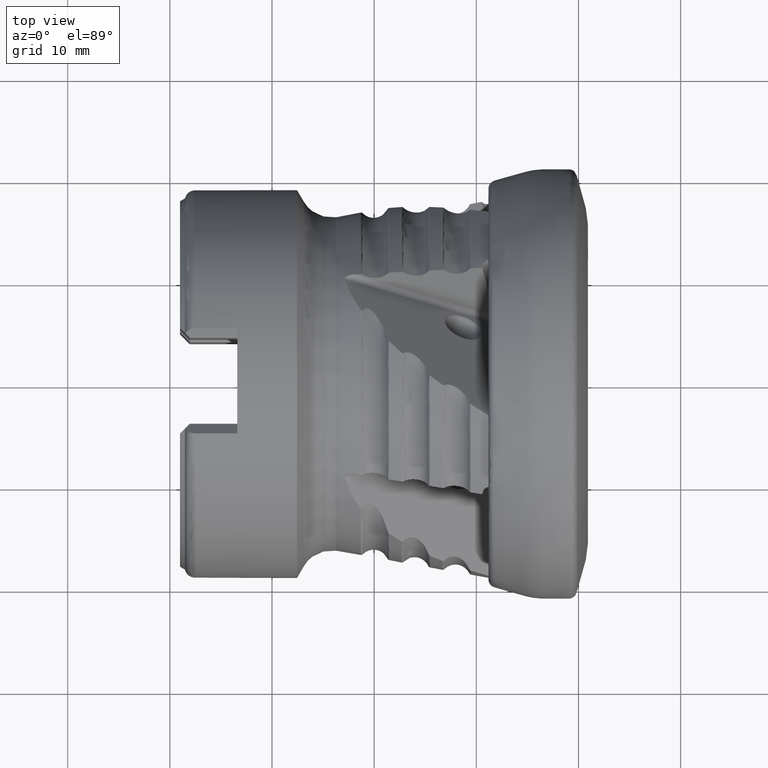
[diagram: clean part render]
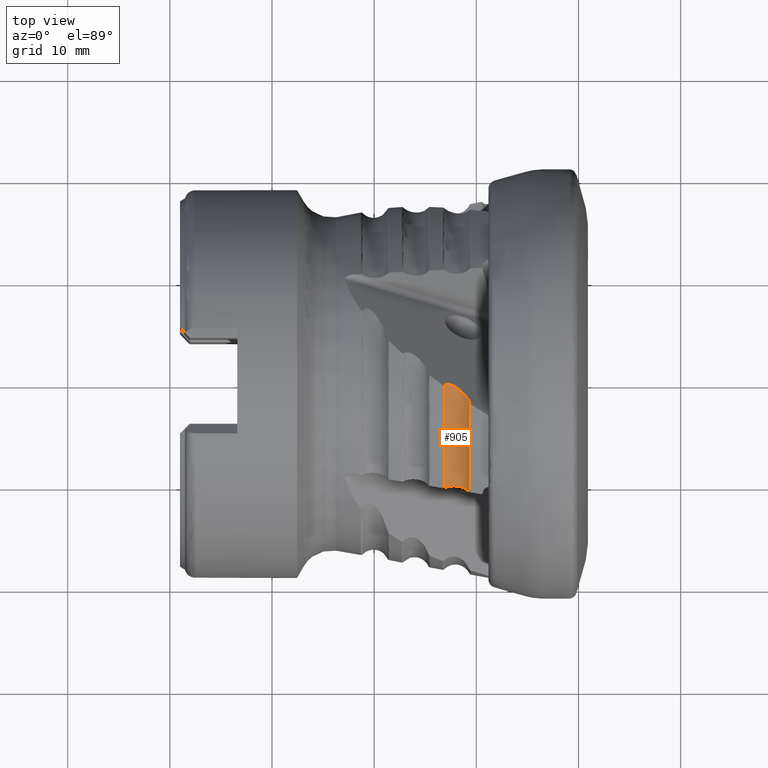
[diagram: same view with one face highlighted and labeled with its STEP entity id]
A machine part, top view. The second image highlights one B-rep face of the part: STEP entity #905.
In plain terms, the highlighted toroidal blend (fillet) surface has major radius 19.1713 mm and minor (blend) radius 1.5 mm.
Its self-contained STEP definition (entity closure, byte-faithful):
#185 = VERTEX_POINT ( 'NONE', #3849 ) ;
#223 = CARTESIAN_POINT ( 'NONE',  ( -10.68017554922010100, -2.119321010124012100, 18.43865570297902000 ) ) ;
#578 = EDGE_CURVE ( 'NONE', #185, #7853, #8871, .T. ) ;
#621 = EDGE_LOOP ( 'NONE', ( #1649, #7051, #7034, #3804 ) ) ;
#905 = ADVANCED_FACE ( 'NONE', ( #7429 ), #5562, .F. ) ;
#1362 = CARTESIAN_POINT ( 'NONE',  ( -13.13077898559616100, -0.4321376897744005900, 18.12596230919154300 ) ) ;
#1649 = ORIENTED_EDGE ( 'NONE', *, *, #7004, .T. ) ;
#1798 = CARTESIAN_POINT ( 'NONE',  ( -10.89323141793811800, -1.679352099229667500, 18.11634688501154500 ) ) ;
#1842 = VERTEX_POINT ( 'NONE', #223 ) ;
#2001 = CARTESIAN_POINT ( 'NONE',  ( -12.91318140703387800, -0.3681475559674734500, 17.93858635823398700 ) ) ;
#2016 = CARTESIAN_POINT ( 'NONE',  ( -13.02801870458214500, -0.3918814143876175300, 18.02737427003242500 ) ) ;
#2019 = CARTESIAN_POINT ( 'NONE',  ( -13.08132523932029100, -0.4093740759567023900, 18.07510507996012800 ) ) ;
#2035 = CARTESIAN_POINT ( 'NONE',  ( -13.13077898559616100, -0.4321376897744005900, 18.12596230919154300 ) ) ;
#2096 = CARTESIAN_POINT ( 'NONE',  ( -12.24693641506314600, -0.4767330181890671600, 17.67129510431081500 ) ) ;
#2102 = CARTESIAN_POINT ( 'NONE',  ( -12.52008004756391400, -0.3874022434160395200, 17.73578340937483600 ) ) ;
#2176 = CARTESIAN_POINT ( 'NONE',  ( -11.73793910005533400, -0.7739818175747417200, 17.68272507688474000 ) ) ;
#2210 = CARTESIAN_POINT ( 'NONE',  ( -12.65836220155172100, -0.3622254093605100600, 17.78860493983321000 ) ) ;
#2241 = CARTESIAN_POINT ( 'NONE',  ( -12.85071666683739800, -0.3619702474563242200, 17.89706566722633200 ) ) ;
#2273 = CARTESIAN_POINT ( 'NONE',  ( -11.22005292887726400, -1.254276132651752900, 17.87332395791970500 ) ) ;
#2302 = CARTESIAN_POINT ( 'NONE',  ( -11.41068289237418800, -1.053481530080581300, 17.77901360053393600 ) ) ;
#2305 = CARTESIAN_POINT ( 'NONE',  ( -11.51348871050810800, -0.9570176030535152400, 17.74005022205580300 ) ) ;
#2308 = CARTESIAN_POINT ( 'NONE',  ( -11.85784846045784100, -0.6889500019988100700, 17.66493227600607300 ) ) ;
#2331 = CARTESIAN_POINT ( 'NONE',  ( -12.11173638994503300, -0.5404974886250909500, 17.65904507391950100 ) ) ;
#2340 = CARTESIAN_POINT ( 'NONE',  ( -11.13168738374281700, -1.359504667691148900, 17.92926842842400600 ) ) ;
#2498 = CARTESIAN_POINT ( 'NONE',  ( -10.68017554922010100, -2.119321010124012100, 18.43865570297902000 ) ) ;
#2526 = CARTESIAN_POINT ( 'NONE',  ( -10.76853488615283000, -1.896997058277151600, 18.26487836108636700 ) ) ;
#3172 = B_SPLINE_CURVE_WITH_KNOTS ( 'NONE', 3,
 ( #2498, #2526, #1798, #2340, #2273, #2302, #2305, #2176, #2308, #2331, #2096, #2102, #2210, #2241, #2001, #2016, #2019, #2035 ),
 .UNSPECIFIED., .F., .F.,
 ( 4, 2, 2, 2, 2, 2, 2, 2, 4 ),
 ( 6.599408178958873400E-007, 0.0008750545435202624400, 0.001312251844871442100, 0.001749449146222622000, 0.002186646447573801800, 0.002623843748924981300, 0.003061041050276161300, 0.003279639700951751500, 0.003498238351627341300 ),
 .UNSPECIFIED. ) ;
#3804 = ORIENTED_EDGE ( 'NONE', *, *, #4114, .T. ) ;
#3849 = CARTESIAN_POINT ( 'NONE',  ( -13.13077898559607700, -10.43216131451598700, 14.82927047851876900 ) ) ;
#4114 = EDGE_CURVE ( 'NONE', #1842, #8273, #3172, .T. ) ;
#4219 = CARTESIAN_POINT ( 'NONE',  ( -10.68017554922010600, -10.82398617207393500, 15.07703117406426500 ) ) ;
#4840 = AXIS2_PLACEMENT_3D ( 'NONE', #9128, #9125, #9104 ) ;
#5330 = DIRECTION ( 'NONE',  ( 0.0000000000000000000, 0.0000000000000000000, 1.000000000000000000 ) ) ;
#5334 = DIRECTION ( 'NONE',  ( -1.000000000000000000, 0.0000000000000000000, 0.0000000000000000000 ) ) ;
#5345 = CARTESIAN_POINT ( 'NONE',  ( -10.68017554921997300, 0.0000000000000000000, 0.0000000000000000000 ) ) ;
#5562 = TOROIDAL_SURFACE ( 'NONE', #7507, 19.17126512348531300, 1.499999999999999100 ) ;
#6101 = CARTESIAN_POINT ( 'NONE',  ( -12.05000000000000100, 0.0000000000000000000, 0.0000000000000000000 ) ) ;
#6121 = DIRECTION ( 'NONE',  ( 1.000000000000000000, -0.0000000000000000000, -0.0000000000000000000 ) ) ;
#6266 = DIRECTION ( 'NONE',  ( 0.0000000000000000000, 0.0000000000000000000, -1.000000000000000000 ) ) ;
#6345 = CARTESIAN_POINT ( 'NONE',  ( -11.55401948530955600, -10.29838064332436600, 14.45755546743706800 ) ) ;
#6356 = CARTESIAN_POINT ( 'NONE',  ( -11.22471928225377800, -10.41257353339821100, 14.57555277183350200 ) ) ;
#6364 = CARTESIAN_POINT ( 'NONE',  ( -11.67173132639387700, -10.27060465354126800, 14.43332887457930400 ) ) ;
#6370 = CARTESIAN_POINT ( 'NONE',  ( -10.78081122710857200, -10.68569804725201400, 14.89866618350049900 ) ) ;
#6379 = CARTESIAN_POINT ( 'NONE',  ( -10.93647604100523200, -10.56085250964371400, 14.74534995605529300 ) ) ;
#6389 = CARTESIAN_POINT ( 'NONE',  ( -11.33159886201299400, -10.36892173181514700, 14.52818632136069400 ) ) ;
#6402 = CARTESIAN_POINT ( 'NONE',  ( -10.68017554922010600, -10.82398617207393500, 15.07703117406426500 ) ) ;
#7004 = EDGE_CURVE ( 'NONE', #8273, #185, #7553, .T. ) ;
#7034 = ORIENTED_EDGE ( 'NONE', *, *, #7713, .T. ) ;
#7051 = ORIENTED_EDGE ( 'NONE', *, *, #578, .T. ) ;
#7429 = FACE_OUTER_BOUND ( 'NONE', #621, .T. ) ;
#7507 = AXIS2_PLACEMENT_3D ( 'NONE', #6101, #6121, #6266 ) ;
#7553 = CIRCLE ( 'NONE', #4840, 18.13111283449401500 ) ;
#7649 = CIRCLE ( 'NONE', #8490, 18.56005241579213200 ) ;
#7713 = EDGE_CURVE ( 'NONE', #7853, #1842, #7649, .T. ) ;
#7853 = VERTEX_POINT ( 'NONE', #4219 ) ;
#8196 = CARTESIAN_POINT ( 'NONE',  ( -13.04515922971355500, -10.38476092015922300, 14.75384354160596900 ) ) ;
#8273 = VERTEX_POINT ( 'NONE', #1362 ) ;
#8490 = AXIS2_PLACEMENT_3D ( 'NONE', #5345, #5334, #5330 ) ;
#8502 = CARTESIAN_POINT ( 'NONE',  ( -13.13077898559607700, -10.43216131451598700, 14.82927047851876900 ) ) ;
#8513 = CARTESIAN_POINT ( 'NONE',  ( -11.91327229954674900, -10.23209684704091200, 14.40906273381964900 ) ) ;
#8525 = CARTESIAN_POINT ( 'NONE',  ( -12.03463352441057100, -10.22157957266645700, 14.40902487959471600 ) ) ;
#8529 = CARTESIAN_POINT ( 'NONE',  ( -12.63113593092176700, -10.25613286743696200, 14.52754727193651800 ) ) ;
#8556 = CARTESIAN_POINT ( 'NONE',  ( -12.27852785296942400, -10.21787633738449800, 14.43294309209684200 ) ) ;
#8585 = CARTESIAN_POINT ( 'NONE',  ( -12.74384509507649600, -10.28068650140138900, 14.57475107565365700 ) ) ;
#8821 = CARTESIAN_POINT ( 'NONE',  ( -12.39995978482940900, -10.22496838335057300, 14.45715079979120100 ) ) ;
#8871 = B_SPLINE_CURVE_WITH_KNOTS ( 'NONE', 3,
 ( #8502, #8196, #9451, #8585, #8529, #8821, #8556, #8525, #8513, #6364, #6345, #6389, #6356, #6379, #6370, #6402 ),
 .UNSPECIFIED., .F., .F.,
 ( 4, 2, 2, 2, 2, 2, 2, 4 ),
 ( 2.845484682400356300E-007, 0.0003656986682397437300, 0.0007311127880112474200, 0.001096526907782751100, 0.001461941027554254900, 0.001827355147325758700, 0.002192769267097262100, 0.002923597506640265300 ),
 .UNSPECIFIED. ) ;
#9104 = DIRECTION ( 'NONE',  ( 0.0000000000000000000, 0.0000000000000000000, -1.000000000000000000 ) ) ;
#9125 = DIRECTION ( 'NONE',  ( 1.000000000000000000, -0.0000000000000000000, -0.0000000000000000000 ) ) ;
#9128 = CARTESIAN_POINT ( 'NONE',  ( -13.13077898559603800, 0.0000000000000000000, 0.0000000000000000000 ) ) ;
#9451 = CARTESIAN_POINT ( 'NONE',  ( -12.95051983468562200, -10.34509622898118200, 14.68799085090427400 ) ) ;